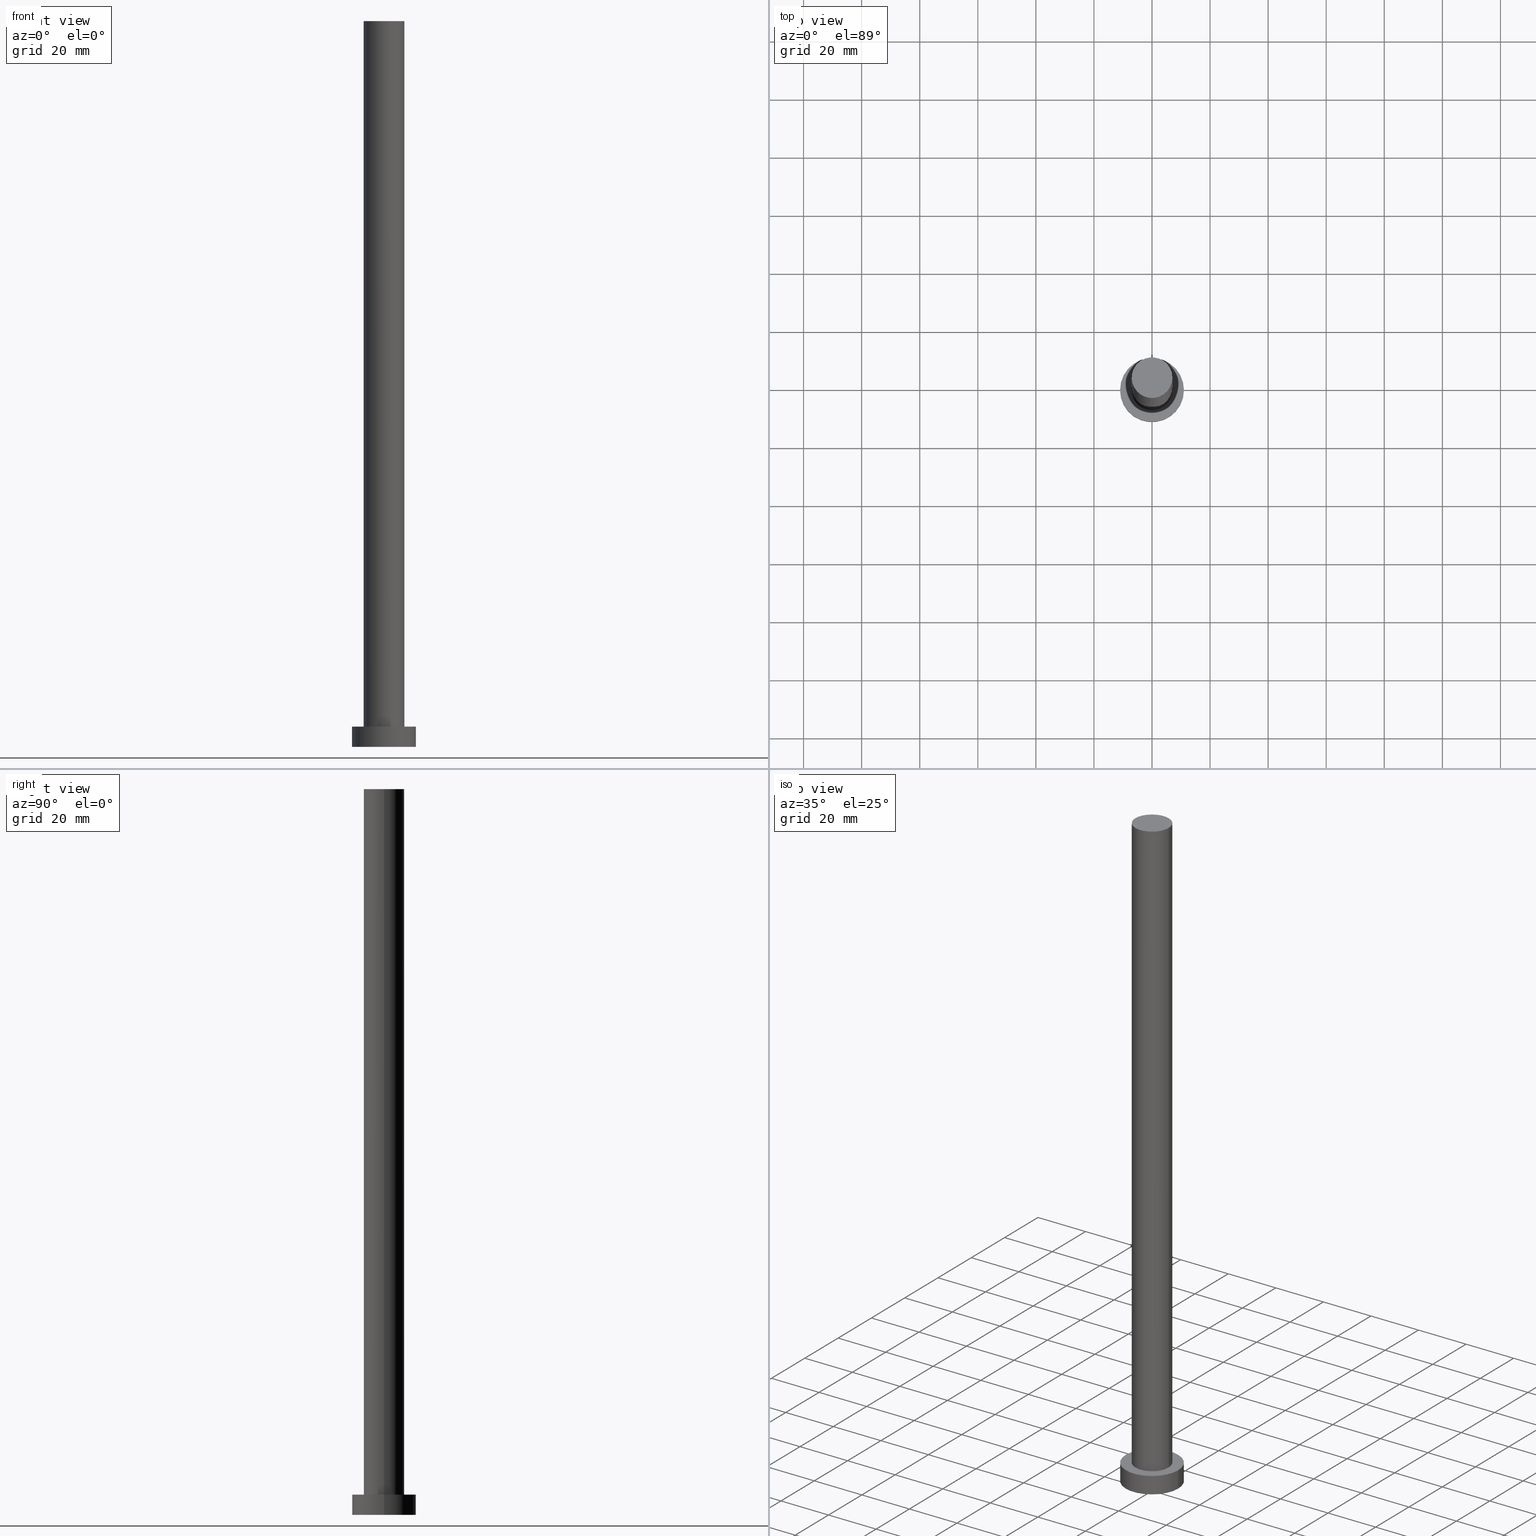
[diagram: canonical four-view strip — front | top / right | iso, engineering-drawing reading convention]
A machine part, canonical four-view strip (front | top / right | iso — engineering-drawing reading convention). The complete STEP part file that produces these views, byte-faithful:
ISO-10303-21;
HEADER;
FILE_DESCRIPTION (( 'STEP AP203' ),
    '1' );
FILE_NAME ('0e1b.STEP',
    '2023-02-13T10:35:42',
    ( '' ),
    ( '' ),
    'SwSTEP 2.0',
    'SolidWorks 2019',
    '' );
FILE_SCHEMA (( 'CONFIG_CONTROL_DESIGN' ));
ENDSEC;

DATA;
#1 = AXIS2_PLACEMENT_3D ( 'NONE', #216, #125, #65 ) ;
#2 = ORIENTED_EDGE ( 'NONE', *, *, #88, .F. ) ;
#3 = ORIENTED_EDGE ( 'NONE', *, *, #156, .F. ) ;
#4 = ORIENTED_EDGE ( 'NONE', *, *, #45, .T. ) ;
#5 = UNCERTAINTY_MEASURE_WITH_UNIT (LENGTH_MEASURE( 1.000000000000000082E-05 ), #151, 'distance_accuracy_value', 'NONE');
#6 = VECTOR ( 'NONE', #239, 1000.000000000000000 ) ;
#7 = CARTESIAN_POINT ( 'NONE',  ( 0.000000000000000000, 0.000000000000000000, 0.000000000000000000 ) ) ;
#8 = ORIENTED_EDGE ( 'NONE', *, *, #159, .T. ) ;
#9 = CARTESIAN_POINT ( 'NONE',  ( -11.00000000000000000, 0.000000000000000000, 7.000000000000000000 ) ) ;
#10 = AXIS2_PLACEMENT_3D ( 'NONE', #7, #218, #123 ) ;
#11 = APPLICATION_PROTOCOL_DEFINITION ( 'international standard', 'config_control_design', 1994, #148 ) ;
#12 = PERSON_AND_ORGANIZATION ( #210, #193 ) ;
#13 = AXIS2_PLACEMENT_3D ( 'NONE', #178, #181, #53 ) ;
#14 = DIRECTION ( 'NONE',  ( 1.000000000000000000, 0.000000000000000000, 0.000000000000000000 ) ) ;
#15 = SECURITY_CLASSIFICATION ( '', '', #78 ) ;
#16 = EDGE_CURVE ( 'NONE', #96, #172, #27, .T. ) ;
#17 = CALENDAR_DATE ( 2023, 13, 2 ) ;
#18 = CC_DESIGN_PERSON_AND_ORGANIZATION_ASSIGNMENT ( #75, #254, ( #199 ) ) ;
#19 = AXIS2_PLACEMENT_3D ( 'NONE', #47, #25, #179 ) ;
#20 = VERTEX_POINT ( 'NONE', #29 ) ;
#21 = VECTOR ( 'NONE', #238, 1000.000000000000000 ) ;
#22 = ORIENTED_EDGE ( 'NONE', *, *, #202, .T. ) ;
#23 = ORIENTED_EDGE ( 'NONE', *, *, #186, .T. ) ;
#24 = AXIS2_PLACEMENT_3D ( 'NONE', #200, #122, #84 ) ;
#25 = DIRECTION ( 'NONE',  ( -0.000000000000000000, -0.000000000000000000, -1.000000000000000000 ) ) ;
#26 = DIRECTION ( 'NONE',  ( -0.000000000000000000, -0.000000000000000000, -1.000000000000000000 ) ) ;
#27 = LINE ( 'NONE', #9, #247 ) ;
#28 = LOCAL_TIME ( 11, 35, 42.00000000000000000, #251 ) ;
#29 = CARTESIAN_POINT ( 'NONE',  ( -7.000000000000000888, 0.000000000000000000, 250.0000000000000000 ) ) ;
#30 = CARTESIAN_POINT ( 'NONE',  ( -7.000000000000000888, 0.000000000000000000, 250.0000000000000000 ) ) ;
#31 = ADVANCED_FACE ( 'NONE', ( #105 ), #236, .T. ) ;
#32 = DIRECTION ( 'NONE',  ( 0.000000000000000000, 0.000000000000000000, 1.000000000000000000 ) ) ;
#33 = CARTESIAN_POINT ( 'NONE',  ( 11.00000000000000000, 1.347111479062088405E-15, 7.000000000000000000 ) ) ;
#34 = CARTESIAN_POINT ( 'NONE',  ( 0.000000000000000000, 0.000000000000000000, 7.000000000000000000 ) ) ;
#35 = APPROVAL ( #72, 'NEUR�EN�' ) ;
#36 =( NAMED_UNIT ( * ) SI_UNIT ( $, .STERADIAN. ) SOLID_ANGLE_UNIT ( ) );
#37 = APPROVAL_PERSON_ORGANIZATION ( #91, #205, #38 ) ;
#38 = APPROVAL_ROLE ( '' ) ;
#39 = PERSON_AND_ORGANIZATION ( #210, #193 ) ;
#40 = EDGE_LOOP ( 'NONE', ( #160, #4, #114, #102 ) ) ;
#41 = AXIS2_PLACEMENT_3D ( 'NONE', #112, #245, #14 ) ;
#42 = PERSON_AND_ORGANIZATION ( #210, #193 ) ;
#43 = PRODUCT_DEFINITION_SHAPE ( 'NONE', 'NONE',  #66 ) ;
#44 = ORIENTED_EDGE ( 'NONE', *, *, #92, .T. ) ;
#45 = EDGE_CURVE ( 'NONE', #117, #95, #81, .T. ) ;
#46 = CARTESIAN_POINT ( 'NONE',  ( 11.00000000000000000, 1.347111479062088405E-15, 7.000000000000000000 ) ) ;
#47 = CARTESIAN_POINT ( 'NONE',  ( 0.000000000000000000, 0.000000000000000000, 250.0000000000000000 ) ) ;
#48 = EDGE_CURVE ( 'NONE', #172, #212, #70, .T. ) ;
#49 = CARTESIAN_POINT ( 'NONE',  ( 0.000000000000000000, 0.000000000000000000, 0.000000000000000000 ) ) ;
#50 = MANIFOLD_SOLID_BREP ( 'P�idat vysunut�m3', #77 ) ;
#51 = FACE_OUTER_BOUND ( 'NONE', #176, .T. ) ;
#52 = AXIS2_PLACEMENT_3D ( 'NONE', #86, #224, #228 ) ;
#53 = DIRECTION ( 'NONE',  ( 1.000000000000000000, 0.000000000000000000, -0.000000000000000000 ) ) ;
#54 = APPROVAL_ROLE ( '' ) ;
#55 = ADVANCED_FACE ( 'NONE', ( #196 ), #183, .T. ) ;
#56 = CIRCLE ( 'NONE', #192, 11.00000000000000000 ) ;
#57 = APPLICATION_PROTOCOL_DEFINITION ( 'international standard', 'config_control_design', 1994, #242 ) ;
#58 = CC_DESIGN_DATE_AND_TIME_ASSIGNMENT ( #209, #138, ( #66 ) ) ;
#59 = CARTESIAN_POINT ( 'NONE',  ( 0.000000000000000000, 0.000000000000000000, 7.000000000000000000 ) ) ;
#60 = CIRCLE ( 'NONE', #230, 7.000000000000000888 ) ;
#61 = DATE_AND_TIME ( #17, #243 ) ;
#62 = ORIENTED_EDGE ( 'NONE', *, *, #202, .F. ) ;
#63 = APPROVAL_DATE_TIME ( #214, #255 ) ;
#64 = CARTESIAN_POINT ( 'NONE',  ( 7.000000000000000888, 8.572527594031474176E-16, 250.0000000000000000 ) ) ;
#65 = DIRECTION ( 'NONE',  ( -1.000000000000000000, 0.000000000000000000, 0.000000000000000000 ) ) ;
#66 = PRODUCT_DEFINITION ( 'NEZN�M�', '', #199, #164 ) ;
#67 = CARTESIAN_POINT ( 'NONE',  ( -11.00000000000000000, 0.000000000000000000, 7.000000000000000000 ) ) ;
#68 = DIRECTION ( 'NONE',  ( 0.000000000000000000, 0.000000000000000000, 1.000000000000000000 ) ) ;
#69 = ORIENTED_EDGE ( 'NONE', *, *, #45, .F. ) ;
#70 = CIRCLE ( 'NONE', #10, 11.00000000000000000 ) ;
#71 = ADVANCED_BREP_SHAPE_REPRESENTATION ( '0e1b', ( #50, #149 ), #253 ) ;
#72 = APPROVAL_STATUS ( 'not_yet_approved' ) ;
#73 = COORDINATED_UNIVERSAL_TIME_OFFSET ( 1, 0, .AHEAD. ) ;
#74 = PLANE ( 'NONE',  #208 ) ;
#75 = PERSON_AND_ORGANIZATION ( #210, #193 ) ;
#76 = CC_DESIGN_PERSON_AND_ORGANIZATION_ASSIGNMENT ( #244, #226, ( #158 ) ) ;
#77 = CLOSED_SHELL ( 'NONE', ( #109, #184, #55, #215, #250, #141, #31 ) ) ;
#78 = SECURITY_CLASSIFICATION_LEVEL ( 'unclassified' ) ;
#79 = PERSON_AND_ORGANIZATION ( #210, #193 ) ;
#80 = VERTEX_POINT ( 'NONE', #46 ) ;
#81 = LINE ( 'NONE', #64, #21 ) ;
#82 = DIRECTION ( 'NONE',  ( 1.000000000000000000, 0.000000000000000000, 0.000000000000000000 ) ) ;
#83 = CIRCLE ( 'NONE', #41, 7.000000000000000888 ) ;
#84 = DIRECTION ( 'NONE',  ( 1.000000000000000000, 0.000000000000000000, 0.000000000000000000 ) ) ;
#85 = DIRECTION ( 'NONE',  ( -0.000000000000000000, -0.000000000000000000, -1.000000000000000000 ) ) ;
#86 = CARTESIAN_POINT ( 'NONE',  ( 0.000000000000000000, 0.000000000000000000, 7.000000000000000000 ) ) ;
#87 = DIRECTION ( 'NONE',  ( -0.000000000000000000, -0.000000000000000000, -1.000000000000000000 ) ) ;
#88 = EDGE_CURVE ( 'NONE', #212, #172, #100, .T. ) ;
#89 = PERSON_AND_ORGANIZATION_ROLE ( 'creator' ) ;
#90 =( NAMED_UNIT ( * ) PLANE_ANGLE_UNIT ( ) SI_UNIT ( $, .RADIAN. ) );
#91 = PERSON_AND_ORGANIZATION ( #210, #193 ) ;
#92 = EDGE_CURVE ( 'NONE', #20, #177, #142, .T. ) ;
#93 = EDGE_LOOP ( 'NONE', ( #174, #2 ) ) ;
#94 = CALENDAR_DATE ( 2023, 13, 2 ) ;
#95 = VERTEX_POINT ( 'NONE', #106 ) ;
#96 = VERTEX_POINT ( 'NONE', #67 ) ;
#97 = EDGE_CURVE ( 'NONE', #177, #95, #128, .T. ) ;
#98 = COORDINATED_UNIVERSAL_TIME_OFFSET ( 1, 0, .AHEAD. ) ;
#99 = ORIENTED_EDGE ( 'NONE', *, *, #222, .T. ) ;
#100 = CIRCLE ( 'NONE', #129, 11.00000000000000000 ) ;
#101 = CIRCLE ( 'NONE', #52, 11.00000000000000000 ) ;
#102 = ORIENTED_EDGE ( 'NONE', *, *, #92, .F. ) ;
#103 = FACE_OUTER_BOUND ( 'NONE', #140, .T. ) ;
#104 = CARTESIAN_POINT ( 'NONE',  ( 7.000000000000000888, 8.572527594031474176E-16, 250.0000000000000000 ) ) ;
#105 = FACE_OUTER_BOUND ( 'NONE', #194, .T. ) ;
#106 = CARTESIAN_POINT ( 'NONE',  ( 7.000000000000000888, 8.572527594031474176E-16, 7.000000000000000000 ) ) ;
#107 = DIRECTION ( 'NONE',  ( 1.000000000000000000, 0.000000000000000000, -0.000000000000000000 ) ) ;
#108 = AXIS2_PLACEMENT_3D ( 'NONE', #246, #32, #107 ) ;
#109 = ADVANCED_FACE ( 'NONE', ( #119 ), #144, .T. ) ;
#110 = CARTESIAN_POINT ( 'NONE',  ( 11.00000000000000000, 1.347111479062088405E-15, 0.000000000000000000 ) ) ;
#111 = DATE_AND_TIME ( #126, #153 ) ;
#112 = CARTESIAN_POINT ( 'NONE',  ( 0.000000000000000000, 0.000000000000000000, 250.0000000000000000 ) ) ;
#113 = DATE_TIME_ROLE ( 'classification_date' ) ;
#114 = ORIENTED_EDGE ( 'NONE', *, *, #217, .T. ) ;
#115 = APPROVAL_STATUS ( 'not_yet_approved' ) ;
#116 = PRODUCT_RELATED_PRODUCT_CATEGORY ( 'detail', '', ( #158 ) ) ;
#117 = VERTEX_POINT ( 'NONE', #104 ) ;
#118 = ORIENTED_EDGE ( 'NONE', *, *, #186, .F. ) ;
#119 = FACE_OUTER_BOUND ( 'NONE', #40, .T. ) ;
#120 = AXIS2_PLACEMENT_3D ( 'NONE', #59, #171, #131 ) ;
#121 = CYLINDRICAL_SURFACE ( 'NONE', #168, 7.000000000000000888 ) ;
#122 = DIRECTION ( 'NONE',  ( 0.000000000000000000, 0.000000000000000000, 1.000000000000000000 ) ) ;
#123 = DIRECTION ( 'NONE',  ( 1.000000000000000000, 0.000000000000000000, 0.000000000000000000 ) ) ;
#124 = CC_DESIGN_APPROVAL ( #35, ( #66 ) ) ;
#125 = DIRECTION ( 'NONE',  ( -0.000000000000000000, -0.000000000000000000, -1.000000000000000000 ) ) ;
#126 = CALENDAR_DATE ( 2023, 13, 2 ) ;
#127 = CARTESIAN_POINT ( 'NONE',  ( 0.000000000000000000, 0.000000000000000000, 0.000000000000000000 ) ) ;
#128 = CIRCLE ( 'NONE', #24, 7.000000000000000888 ) ;
#129 = AXIS2_PLACEMENT_3D ( 'NONE', #49, #201, #82 ) ;
#130 = PERSON_AND_ORGANIZATION ( #210, #193 ) ;
#131 = DIRECTION ( 'NONE',  ( 1.000000000000000000, 0.000000000000000000, 0.000000000000000000 ) ) ;
#132 = LINE ( 'NONE', #33, #162 ) ;
#133 = PERSON_AND_ORGANIZATION_ROLE ( 'creator' ) ;
#134 = ORIENTED_EDGE ( 'NONE', *, *, #48, .T. ) ;
#135 = CC_DESIGN_DATE_AND_TIME_ASSIGNMENT ( #191, #113, ( #15 ) ) ;
#136 = ORIENTED_EDGE ( 'NONE', *, *, #97, .F. ) ;
#137 = APPROVAL_PERSON_ORGANIZATION ( #130, #35, #54 ) ;
#138 = DATE_TIME_ROLE ( 'creation_date' ) ;
#139 = EDGE_LOOP ( 'NONE', ( #136, #252 ) ) ;
#140 = EDGE_LOOP ( 'NONE', ( #69, #62, #44, #232 ) ) ;
#141 = ADVANCED_FACE ( 'NONE', ( #103 ), #121, .T. ) ;
#142 = LINE ( 'NONE', #30, #6 ) ;
#143 = CC_DESIGN_APPROVAL ( #255, ( #199 ) ) ;
#144 = CYLINDRICAL_SURFACE ( 'NONE', #19, 7.000000000000000888 ) ;
#145 = CARTESIAN_POINT ( 'NONE',  ( -11.00000000000000000, 0.000000000000000000, 0.000000000000000000 ) ) ;
#146 = ORIENTED_EDGE ( 'NONE', *, *, #88, .T. ) ;
#147 = FACE_BOUND ( 'NONE', #139, .T. ) ;
#148 = APPLICATION_CONTEXT ( 'configuration controlled 3d designs of mechanical parts and assemblies' ) ;
#149 = AXIS2_PLACEMENT_3D ( 'NONE', #127, #229, #204 ) ;
#150 = CALENDAR_DATE ( 2023, 13, 2 ) ;
#151 =( LENGTH_UNIT ( ) NAMED_UNIT ( * ) SI_UNIT ( .MILLI., .METRE. ) );
#152 = CALENDAR_DATE ( 2023, 13, 2 ) ;
#153 = LOCAL_TIME ( 11, 35, 42.00000000000000000, #206 ) ;
#154 = COORDINATED_UNIVERSAL_TIME_OFFSET ( 1, 0, .AHEAD. ) ;
#155 = ORIENTED_EDGE ( 'NONE', *, *, #156, .T. ) ;
#156 = EDGE_CURVE ( 'NONE', #80, #96, #56, .T. ) ;
#157 = ORIENTED_EDGE ( 'NONE', *, *, #16, .F. ) ;
#158 = PRODUCT ( '0e1b', '0e1b', '', ( #189 ) ) ;
#159 = EDGE_CURVE ( 'NONE', #117, #20, #60, .T. ) ;
#160 = ORIENTED_EDGE ( 'NONE', *, *, #159, .F. ) ;
#161 = EDGE_LOOP ( 'NONE', ( #23, #155 ) ) ;
#162 = VECTOR ( 'NONE', #87, 1000.000000000000000 ) ;
#163 = DIRECTION ( 'NONE',  ( -1.000000000000000000, 0.000000000000000000, 0.000000000000000000 ) ) ;
#164 = DESIGN_CONTEXT ( 'detailed design', #242, 'design' ) ;
#165 = APPROVAL_PERSON_ORGANIZATION ( #39, #255, #233 ) ;
#166 = DIRECTION ( 'NONE',  ( 1.000000000000000000, 0.000000000000000000, 0.000000000000000000 ) ) ;
#167 = CYLINDRICAL_SURFACE ( 'NONE', #248, 11.00000000000000000 ) ;
#168 = AXIS2_PLACEMENT_3D ( 'NONE', #197, #26, #163 ) ;
#169 = DIRECTION ( 'NONE',  ( 0.000000000000000000, 0.000000000000000000, 1.000000000000000000 ) ) ;
#170 = PLANE ( 'NONE',  #108 ) ;
#171 = DIRECTION ( 'NONE',  ( 0.000000000000000000, 0.000000000000000000, 1.000000000000000000 ) ) ;
#172 = VERTEX_POINT ( 'NONE', #145 ) ;
#173 = CC_DESIGN_APPROVAL ( #205, ( #15 ) ) ;
#174 = ORIENTED_EDGE ( 'NONE', *, *, #48, .F. ) ;
#175 = SHAPE_DEFINITION_REPRESENTATION ( #43, #71 ) ;
#176 = EDGE_LOOP ( 'NONE', ( #3, #99, #146, #157 ) ) ;
#177 = VERTEX_POINT ( 'NONE', #220 ) ;
#178 = CARTESIAN_POINT ( 'NONE',  ( 0.000000000000000000, 0.000000000000000000, 250.0000000000000000 ) ) ;
#179 = DIRECTION ( 'NONE',  ( -1.000000000000000000, 0.000000000000000000, 0.000000000000000000 ) ) ;
#180 = CC_DESIGN_SECURITY_CLASSIFICATION ( #15, ( #199 ) ) ;
#181 = DIRECTION ( 'NONE',  ( 0.000000000000000000, 0.000000000000000000, 1.000000000000000000 ) ) ;
#182 = DIRECTION ( 'NONE',  ( 0.000000000000000000, 0.000000000000000000, 1.000000000000000000 ) ) ;
#183 = CYLINDRICAL_SURFACE ( 'NONE', #1, 11.00000000000000000 ) ;
#184 = ADVANCED_FACE ( 'NONE', ( #51 ), #167, .T. ) ;
#185 = APPROVAL_DATE_TIME ( #111, #35 ) ;
#186 = EDGE_CURVE ( 'NONE', #96, #80, #101, .T. ) ;
#187 = FACE_OUTER_BOUND ( 'NONE', #93, .T. ) ;
#188 = LOCAL_TIME ( 11, 35, 42.00000000000000000, #73 ) ;
#189 = MECHANICAL_CONTEXT ( 'NONE', #148, 'mechanical' ) ;
#190 = CC_DESIGN_PERSON_AND_ORGANIZATION_ASSIGNMENT ( #12, #89, ( #66 ) ) ;
#191 = DATE_AND_TIME ( #152, #227 ) ;
#192 = AXIS2_PLACEMENT_3D ( 'NONE', #219, #182, #166 ) ;
#193 = ORGANIZATION ( 'NEUR�EN�', 'NEUR�EN�', '' ) ;
#194 = EDGE_LOOP ( 'NONE', ( #22, #8 ) ) ;
#195 = ORIENTED_EDGE ( 'NONE', *, *, #222, .F. ) ;
#196 = FACE_OUTER_BOUND ( 'NONE', #198, .T. ) ;
#197 = CARTESIAN_POINT ( 'NONE',  ( 0.000000000000000000, 0.000000000000000000, 250.0000000000000000 ) ) ;
#198 = EDGE_LOOP ( 'NONE', ( #195, #118, #235, #134 ) ) ;
#199 = PRODUCT_DEFINITION_FORMATION_WITH_SPECIFIED_SOURCE ( 'LIBOVOLN�', '', #158, .NOT_KNOWN. ) ;
#200 = CARTESIAN_POINT ( 'NONE',  ( 0.000000000000000000, 0.000000000000000000, 7.000000000000000000 ) ) ;
#201 = DIRECTION ( 'NONE',  ( 0.000000000000000000, 0.000000000000000000, 1.000000000000000000 ) ) ;
#202 = EDGE_CURVE ( 'NONE', #20, #117, #83, .T. ) ;
#203 = FACE_OUTER_BOUND ( 'NONE', #161, .T. ) ;
#204 = DIRECTION ( 'NONE',  ( 1.000000000000000000, 0.000000000000000000, 0.000000000000000000 ) ) ;
#205 = APPROVAL ( #231, 'NEUR�EN�' ) ;
#206 = COORDINATED_UNIVERSAL_TIME_OFFSET ( 1, 0, .AHEAD. ) ;
#207 = DIRECTION ( 'NONE',  ( 1.000000000000000000, 0.000000000000000000, -0.000000000000000000 ) ) ;
#208 = AXIS2_PLACEMENT_3D ( 'NONE', #34, #169, #207 ) ;
#209 = DATE_AND_TIME ( #150, #188 ) ;
#210 = PERSON ( 'NEUR�EN�', 'NEUR�EN�', 'NEUR�EN�', ('NEUR�EN�'), ('NEUR�EN�'), ('NEUR�EN�') ) ;
#211 = PERSON_AND_ORGANIZATION_ROLE ( 'classification_officer' ) ;
#212 = VERTEX_POINT ( 'NONE', #110 ) ;
#213 = CIRCLE ( 'NONE', #120, 7.000000000000000888 ) ;
#214 = DATE_AND_TIME ( #94, #28 ) ;
#215 = ADVANCED_FACE ( 'NONE', ( #147, #203 ), #74, .T. ) ;
#216 = CARTESIAN_POINT ( 'NONE',  ( 0.000000000000000000, 0.000000000000000000, 7.000000000000000000 ) ) ;
#217 = EDGE_CURVE ( 'NONE', #95, #177, #213, .T. ) ;
#218 = DIRECTION ( 'NONE',  ( 0.000000000000000000, 0.000000000000000000, 1.000000000000000000 ) ) ;
#219 = CARTESIAN_POINT ( 'NONE',  ( 0.000000000000000000, 0.000000000000000000, 7.000000000000000000 ) ) ;
#220 = CARTESIAN_POINT ( 'NONE',  ( -7.000000000000000888, 0.000000000000000000, 7.000000000000000000 ) ) ;
#221 = DIRECTION ( 'NONE',  ( 1.000000000000000000, 0.000000000000000000, 0.000000000000000000 ) ) ;
#222 = EDGE_CURVE ( 'NONE', #80, #212, #132, .T. ) ;
#223 = DIRECTION ( 'NONE',  ( -1.000000000000000000, 0.000000000000000000, 0.000000000000000000 ) ) ;
#224 = DIRECTION ( 'NONE',  ( 0.000000000000000000, 0.000000000000000000, 1.000000000000000000 ) ) ;
#225 = CC_DESIGN_PERSON_AND_ORGANIZATION_ASSIGNMENT ( #79, #211, ( #15 ) ) ;
#226 = PERSON_AND_ORGANIZATION_ROLE ( 'design_owner' ) ;
#227 = LOCAL_TIME ( 11, 35, 42.00000000000000000, #154 ) ;
#228 = DIRECTION ( 'NONE',  ( 1.000000000000000000, 0.000000000000000000, 0.000000000000000000 ) ) ;
#229 = DIRECTION ( 'NONE',  ( 0.000000000000000000, 0.000000000000000000, 1.000000000000000000 ) ) ;
#230 = AXIS2_PLACEMENT_3D ( 'NONE', #240, #68, #221 ) ;
#231 = APPROVAL_STATUS ( 'not_yet_approved' ) ;
#232 = ORIENTED_EDGE ( 'NONE', *, *, #97, .T. ) ;
#233 = APPROVAL_ROLE ( '' ) ;
#234 = APPROVAL_DATE_TIME ( #61, #205 ) ;
#235 = ORIENTED_EDGE ( 'NONE', *, *, #16, .T. ) ;
#236 = PLANE ( 'NONE',  #13 ) ;
#237 = CC_DESIGN_PERSON_AND_ORGANIZATION_ASSIGNMENT ( #42, #133, ( #199 ) ) ;
#238 = DIRECTION ( 'NONE',  ( -0.000000000000000000, -0.000000000000000000, -1.000000000000000000 ) ) ;
#239 = DIRECTION ( 'NONE',  ( -0.000000000000000000, -0.000000000000000000, -1.000000000000000000 ) ) ;
#240 = CARTESIAN_POINT ( 'NONE',  ( 0.000000000000000000, 0.000000000000000000, 250.0000000000000000 ) ) ;
#241 = CARTESIAN_POINT ( 'NONE',  ( 0.000000000000000000, 0.000000000000000000, 7.000000000000000000 ) ) ;
#242 = APPLICATION_CONTEXT ( 'configuration controlled 3d designs of mechanical parts and assemblies' ) ;
#243 = LOCAL_TIME ( 11, 35, 42.00000000000000000, #98 ) ;
#244 = PERSON_AND_ORGANIZATION ( #210, #193 ) ;
#245 = DIRECTION ( 'NONE',  ( 0.000000000000000000, 0.000000000000000000, 1.000000000000000000 ) ) ;
#246 = CARTESIAN_POINT ( 'NONE',  ( 0.000000000000000000, 0.000000000000000000, 0.000000000000000000 ) ) ;
#247 = VECTOR ( 'NONE', #85, 1000.000000000000000 ) ;
#248 = AXIS2_PLACEMENT_3D ( 'NONE', #241, #249, #223 ) ;
#249 = DIRECTION ( 'NONE',  ( -0.000000000000000000, -0.000000000000000000, -1.000000000000000000 ) ) ;
#250 = ADVANCED_FACE ( 'NONE', ( #187 ), #170, .F. ) ;
#251 = COORDINATED_UNIVERSAL_TIME_OFFSET ( 1, 0, .AHEAD. ) ;
#252 = ORIENTED_EDGE ( 'NONE', *, *, #217, .F. ) ;
#253 =( GEOMETRIC_REPRESENTATION_CONTEXT ( 3 ) GLOBAL_UNCERTAINTY_ASSIGNED_CONTEXT ( ( #5 ) ) GLOBAL_UNIT_ASSIGNED_CONTEXT ( ( #151, #90, #36 ) ) REPRESENTATION_CONTEXT ( 'NONE', 'WORKASPACE' ) );
#254 = PERSON_AND_ORGANIZATION_ROLE ( 'design_supplier' ) ;
#255 = APPROVAL ( #115, 'NEUR�EN�' ) ;
ENDSEC;
END-ISO-10303-21;
